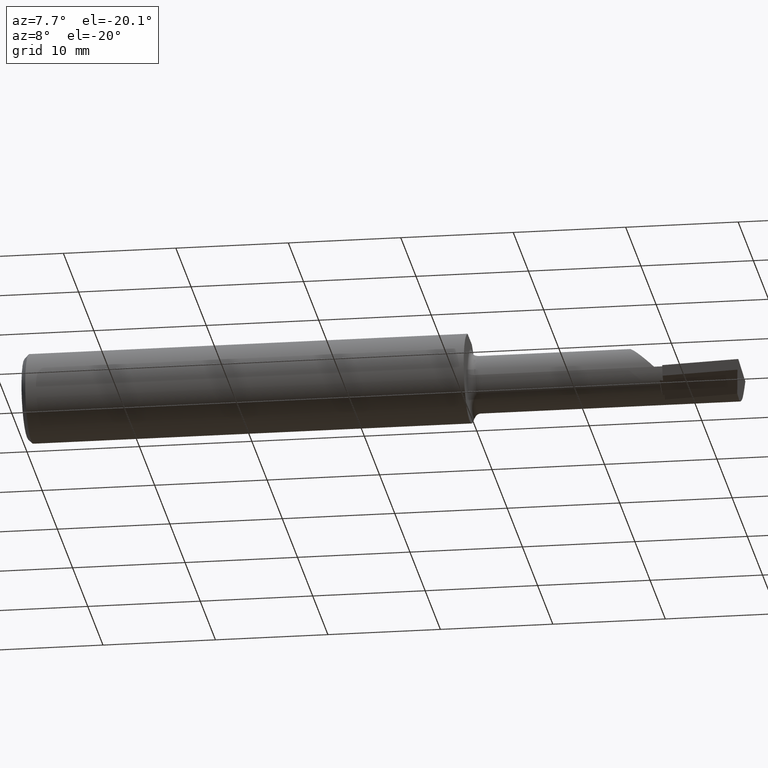
[diagram: clean part render]
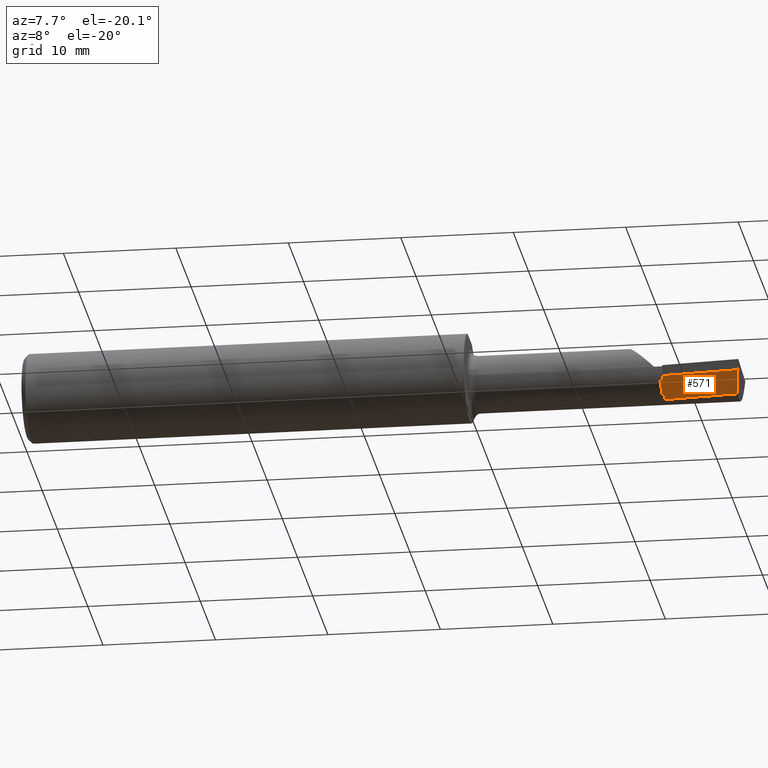
[diagram: same view with one face highlighted and labeled with its STEP entity id]
A machine part, auxiliary view. The second image highlights one B-rep face of the part: STEP entity #571.
In plain terms, the highlighted planar face has unit normal (0.0684, 0.71, 0.7009).
Its self-contained STEP definition (entity closure, byte-faithful):
#22 = EDGE_CURVE ( 'NONE', #302, #662, #330, .T. ) ;
#25 = ORIENTED_EDGE ( 'NONE', *, *, #82, .F. ) ;
#29 = LINE ( 'NONE', #243, #581 ) ;
#35 = LINE ( 'NONE', #95, #283 ) ;
#37 = DIRECTION ( 'NONE',  ( -0.06717917588521574168, -0.6976824170844040385, 0.7132504491541851177 ) ) ;
#48 = ORIENTED_EDGE ( 'NONE', *, *, #22, .F. ) ;
#53 = CARTESIAN_POINT ( 'NONE',  ( 2.229999999999999982, -0.06272190053731417636, -0.006732936968033723622 ) ) ;
#76 = DIRECTION ( 'NONE',  ( 0.06836202603457079696, 0.7099667855717587406, 0.7009092642998472344 ) ) ;
#82 = EDGE_CURVE ( 'NONE', #207, #384, #228, .T. ) ;
#95 = CARTESIAN_POINT ( 'NONE',  ( 2.490723658160492793, -0.02712709695662827644, -0.06821696633277901656 ) ) ;
#107 = VERTEX_POINT ( 'NONE', #353 ) ;
#123 = ORIENTED_EDGE ( 'NONE', *, *, #582, .F. ) ;
#130 = FACE_OUTER_BOUND ( 'NONE', #404, .T. ) ;
#140 = CARTESIAN_POINT ( 'NONE',  ( 2.222310128493429904, 0.01770811878936139061, -0.08745229676307864075 ) ) ;
#176 = CARTESIAN_POINT ( 'NONE',  ( 2.229999999999999982, -0.02114125901369683092, -0.04885090559557524886 ) ) ;
#183 = VECTOR ( 'NONE', #590, 39.37007874015748143 ) ;
#196 = VECTOR ( 'NONE', #535, 39.37007874015748854 ) ;
#198 = AXIS2_PLACEMENT_3D ( 'NONE', #294, #76, #303 ) ;
#205 = CARTESIAN_POINT ( 'NONE',  ( 2.495547506291072359, -0.06038477597192913604, -0.03499999999999992700 ) ) ;
#207 = VERTEX_POINT ( 'NONE', #673 ) ;
#212 = CARTESIAN_POINT ( 'NONE',  ( 2.218438857550834253, -0.02249656715429228931, -0.04635048653364759463 ) ) ;
#228 =( BOUNDED_CURVE ( )  B_SPLINE_CURVE ( 3, ( #212, #431, #389, #176 ),
 .UNSPECIFIED., .F., .F. ) 
 B_SPLINE_CURVE_WITH_KNOTS ( ( 4, 4 ),
 ( 2.845084404038395576, 2.873554924506877661 ),
 .UNSPECIFIED. ) 
 CURVE ( )  GEOMETRIC_REPRESENTATION_ITEM ( )  RATIONAL_B_SPLINE_CURVE ( ( 1.000000000000000000, 0.9999324535960144589, 0.9999324535960144589, 1.000000000000000000 ) ) 
 REPRESENTATION_ITEM ( '' )  );
#231 = CARTESIAN_POINT ( 'NONE',  ( 2.222310128493429904, 0.01770811878936139061, -0.08745229676307864075 ) ) ;
#234 = CARTESIAN_POINT ( 'NONE',  ( 2.217369785204464261, -0.03359930797873920960, -0.03499999999999993394 ) ) ;
#243 = CARTESIAN_POINT ( 'NONE',  ( 2.229999999999999982, -0.06272190053731417636, -0.006732936968033723622 ) ) ;
#255 = CARTESIAN_POINT ( 'NONE',  ( 2.229999999999999982, -0.02114125901369683092, -0.04885090559557524886 ) ) ;
#257 = CARTESIAN_POINT ( 'NONE',  ( 2.224959910392297235, 0.01714715917505337320, -0.08714253022679750715 ) ) ;
#258 = ORIENTED_EDGE ( 'NONE', *, *, #315, .F. ) ;
#267 = CARTESIAN_POINT ( 'NONE',  ( 2.494014181086415149, 0.003834893732622192755, -0.09990000000000000269 ) ) ;
#283 = VECTOR ( 'NONE', #526, 39.37007874015748854 ) ;
#289 = VERTEX_POINT ( 'NONE', #205 ) ;
#291 = CARTESIAN_POINT ( 'NONE',  ( 2.229999999999999982, 0.02925656794008579115, -0.09990000000000000269 ) ) ;
#294 = CARTESIAN_POINT ( 'NONE',  ( 2.217369785204464261, -0.03359930797873920960, -0.03499999999999993394 ) ) ;
#301 = DIRECTION ( 'NONE',  ( 0.9953961983671787417, -0.09584575252022421721, -0.000000000000000000 ) ) ;
#302 = VERTEX_POINT ( 'NONE', #520 ) ;
#303 = DIRECTION ( 'NONE',  ( 0.000000000000000000, -0.7025528302622678911, 0.7116315905652845775 ) ) ;
#313 = CARTESIAN_POINT ( 'NONE',  ( 2.227523279994489513, 0.01658920591323143415, -0.08682738081222331206 ) ) ;
#315 = EDGE_CURVE ( 'NONE', #630, #289, #467, .T. ) ;
#324 = EDGE_CURVE ( 'NONE', #302, #289, #35, .T. ) ;
#330 = LINE ( 'NONE', #267, #183 ) ;
#353 = CARTESIAN_POINT ( 'NONE',  ( 2.229999999999999982, 0.01603431065556216312, -0.08650687769382923997 ) ) ;
#358 = ORIENTED_EDGE ( 'NONE', *, *, #385, .F. ) ;
#367 = VERTEX_POINT ( 'NONE', #140 ) ;
#374 = LINE ( 'NONE', #53, #196 ) ;
#384 = VERTEX_POINT ( 'NONE', #255 ) ;
#385 = EDGE_CURVE ( 'NONE', #107, #367, #689, .T. ) ;
#389 = CARTESIAN_POINT ( 'NONE',  ( 2.226335579060370495, -0.02160487824124662781, -0.04802389199779039802 ) ) ;
#404 = EDGE_LOOP ( 'NONE', ( #48, #512, #258, #123, #25, #464, #358, #560 ) ) ;
#409 = CARTESIAN_POINT ( 'NONE',  ( 2.229999999999999982, -0.03481545933993181879, -0.03499999999999993394 ) ) ;
#431 = CARTESIAN_POINT ( 'NONE',  ( 2.222481604588531834, -0.02205667813890349604, -0.04719036267523946115 ) ) ;
#464 = ORIENTED_EDGE ( 'NONE', *, *, #619, .F. ) ;
#467 = LINE ( 'NONE', #639, #537 ) ;
#474 = CARTESIAN_POINT ( 'NONE',  ( 2.229999999999999982, 0.01603431065556216312, -0.08650687769382923997 ) ) ;
#482 = EDGE_CURVE ( 'NONE', #662, #107, #374, .T. ) ;
#486 = VECTOR ( 'NONE', #37, 39.37007874015748854 ) ;
#512 = ORIENTED_EDGE ( 'NONE', *, *, #324, .T. ) ;
#513 = PLANE ( 'NONE',  #198 ) ;
#520 = CARTESIAN_POINT ( 'NONE',  ( 2.486122571438858397, 0.004594769314331956581, -0.09990000000000000269 ) ) ;
#526 = DIRECTION ( 'NONE',  ( 0.1020886612874968985, -0.7038430390621320809, 0.7029814233678642887 ) ) ;
#535 = DIRECTION ( 'NONE',  ( -2.399084424743908078E-18, -0.7025528302622678911, 0.7116315905652845775 ) ) ;
#537 = VECTOR ( 'NONE', #301, 39.37007874015748143 ) ;
#560 = ORIENTED_EDGE ( 'NONE', *, *, #482, .F. ) ;
#571 = ADVANCED_FACE ( 'NONE', ( #130 ), #513, .F. ) ;
#581 = VECTOR ( 'NONE', #615, 39.37007874015748854 ) ;
#582 = EDGE_CURVE ( 'NONE', #384, #630, #29, .T. ) ;
#590 = DIRECTION ( 'NONE',  ( -0.9953961983671787417, 0.09584575252022421721, -0.000000000000000000 ) ) ;
#615 = DIRECTION ( 'NONE',  ( -2.399084424743908078E-18, -0.7025528302622678911, 0.7116315905652845775 ) ) ;
#619 = EDGE_CURVE ( 'NONE', #367, #207, #667, .T. ) ;
#630 = VERTEX_POINT ( 'NONE', #409 ) ;
#639 = CARTESIAN_POINT ( 'NONE',  ( 2.217369785204464261, -0.03359930797873920960, -0.03499999999999993394 ) ) ;
#662 = VERTEX_POINT ( 'NONE', #291 ) ;
#667 = LINE ( 'NONE', #234, #486 ) ;
#673 = CARTESIAN_POINT ( 'NONE',  ( 2.218438857550834253, -0.02249656715429228931, -0.04635048653364759463 ) ) ;
#689 =( BOUNDED_CURVE ( )  B_SPLINE_CURVE ( 3, ( #474, #313, #257, #231 ),
 .UNSPECIFIED., .F., .T. ) 
 B_SPLINE_CURVE_WITH_KNOTS ( ( 4, 4 ),
 ( 3.409630382672708127, 3.428873477936118963 ),
 .UNSPECIFIED. ) 
 CURVE ( )  GEOMETRIC_REPRESENTATION_ITEM ( )  RATIONAL_B_SPLINE_CURVE ( ( 1.000000000000000000, 0.9999691421784444589, 0.9999691421784444589, 1.000000000000000000 ) ) 
 REPRESENTATION_ITEM ( '' )  );